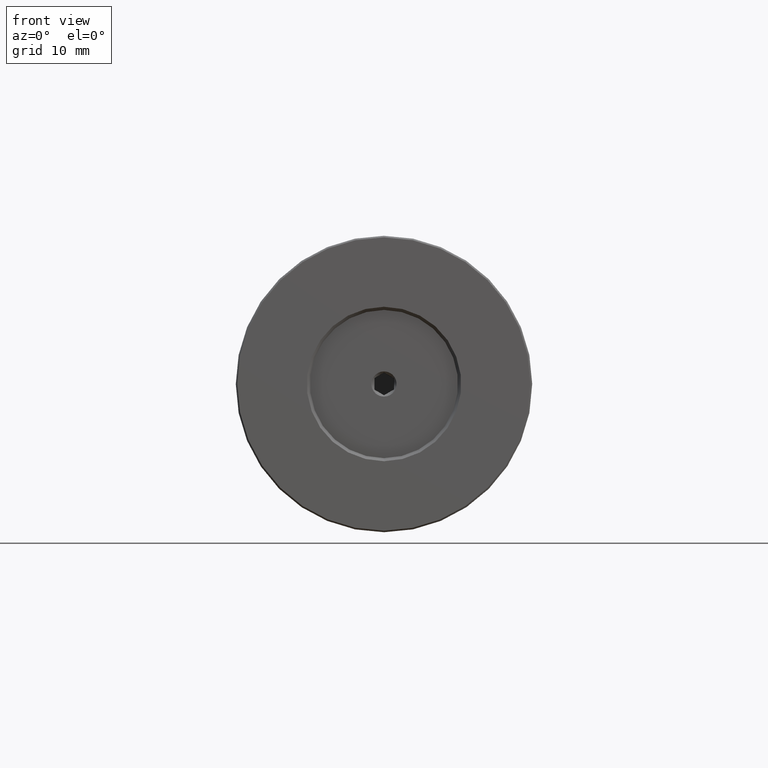
[diagram: clean part render]
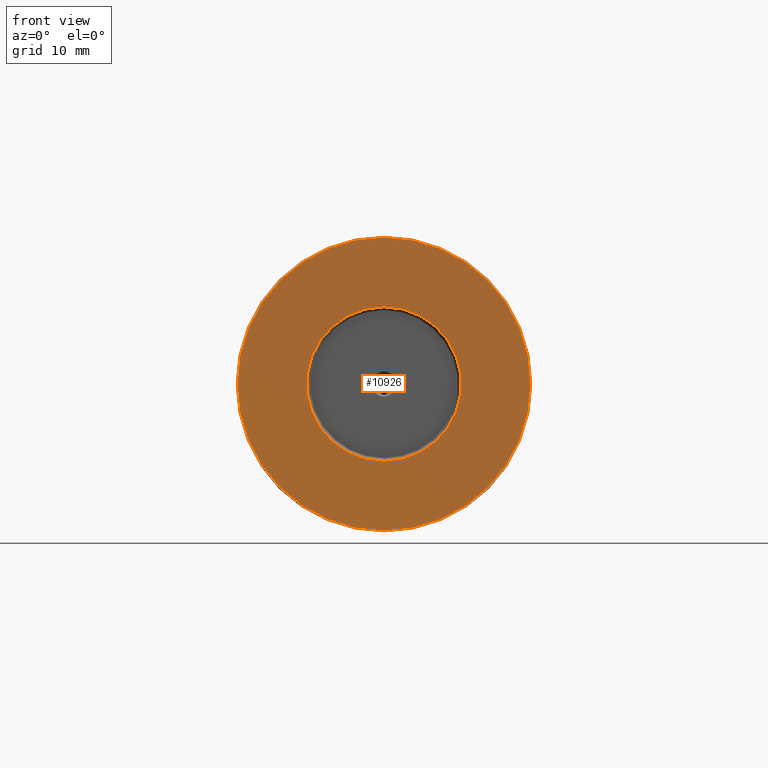
[diagram: same view with one face highlighted and labeled with its STEP entity id]
A machine part, front view. The second image highlights one B-rep face of the part: STEP entity #10926.
In plain terms, the highlighted planar face has unit normal (0, 1, 0).
Its self-contained STEP definition (entity closure, byte-faithful):
#213 = EDGE_LOOP ( 'NONE', ( #2852, #6537 ) ) ;
#326 = DIRECTION ( 'NONE',  ( 0.000000000000000000, 0.000000000000000000, 1.000000000000000000 ) ) ;
#632 = CIRCLE ( 'NONE', #2019, 12.25000000000001066 ) ;
#1293 = FACE_OUTER_BOUND ( 'NONE', #213, .T. ) ;
#2019 = AXIS2_PLACEMENT_3D ( 'NONE', #11609, #7763, #326 ) ;
#2180 = DIRECTION ( 'NONE',  ( 0.000000000000000000, 0.000000000000000000, 1.000000000000000000 ) ) ;
#2290 = AXIS2_PLACEMENT_3D ( 'NONE', #4166, #7876, #6940 ) ;
#2337 = CIRCLE ( 'NONE', #6443, 12.25000000000001066 ) ;
#2517 = EDGE_CURVE ( 'NONE', #6074, #6223, #2337, .T. ) ;
#2608 = CARTESIAN_POINT ( 'NONE',  ( 0.000000000000000000, 0.000000000000000000, 0.000000000000000000 ) ) ;
#2852 = ORIENTED_EDGE ( 'NONE', *, *, #6036, .T. ) ;
#3592 = DIRECTION ( 'NONE',  ( -0.000000000000000000, -1.000000000000000000, -0.000000000000000000 ) ) ;
#3722 = CARTESIAN_POINT ( 'NONE',  ( 0.000000000000000000, 0.000000000000000000, 0.000000000000000000 ) ) ;
#4047 = FACE_BOUND ( 'NONE', #5369, .T. ) ;
#4081 = VERTEX_POINT ( 'NONE', #5089 ) ;
#4166 = CARTESIAN_POINT ( 'NONE',  ( 0.000000000000000000, 0.000000000000000000, 0.000000000000000000 ) ) ;
#4944 = DIRECTION ( 'NONE',  ( 0.000000000000000000, 1.000000000000000000, 0.000000000000000000 ) ) ;
#5089 = CARTESIAN_POINT ( 'NONE',  ( 2.862611893006937638E-15, 0.000000000000000000, -23.24999999999999645 ) ) ;
#5369 = EDGE_LOOP ( 'NONE', ( #5475, #6091 ) ) ;
#5475 = ORIENTED_EDGE ( 'NONE', *, *, #2517, .T. ) ;
#5565 = DIRECTION ( 'NONE',  ( 0.000000000000000000, 0.000000000000000000, 1.000000000000000000 ) ) ;
#5933 = CIRCLE ( 'NONE', #9084, 23.24999999999999645 ) ;
#6036 = EDGE_CURVE ( 'NONE', #10767, #4081, #5933, .T. ) ;
#6074 = VERTEX_POINT ( 'NONE', #6098 ) ;
#6091 = ORIENTED_EDGE ( 'NONE', *, *, #9732, .T. ) ;
#6098 = CARTESIAN_POINT ( 'NONE',  ( 0.000000000000000000, 0.000000000000000000, -12.25000000000001066 ) ) ;
#6223 = VERTEX_POINT ( 'NONE', #8069 ) ;
#6443 = AXIS2_PLACEMENT_3D ( 'NONE', #10595, #4944, #2180 ) ;
#6537 = ORIENTED_EDGE ( 'NONE', *, *, #10322, .T. ) ;
#6940 = DIRECTION ( 'NONE',  ( 0.000000000000000000, -0.000000000000000000, 1.000000000000000000 ) ) ;
#7763 = DIRECTION ( 'NONE',  ( 0.000000000000000000, 1.000000000000000000, 0.000000000000000000 ) ) ;
#7809 = CIRCLE ( 'NONE', #11508, 23.24999999999999645 ) ;
#7816 = CARTESIAN_POINT ( 'NONE',  ( 0.000000000000000000, 0.000000000000000000, 23.24999999999999645 ) ) ;
#7876 = DIRECTION ( 'NONE',  ( 0.000000000000000000, 1.000000000000000000, 0.000000000000000000 ) ) ;
#8069 = CARTESIAN_POINT ( 'NONE',  ( 1.500192328955509115E-15, 0.000000000000000000, 12.25000000000001066 ) ) ;
#8789 = PLANE ( 'NONE',  #2290 ) ;
#9084 = AXIS2_PLACEMENT_3D ( 'NONE', #2608, #10893, #9119 ) ;
#9119 = DIRECTION ( 'NONE',  ( 0.000000000000000000, 0.000000000000000000, 1.000000000000000000 ) ) ;
#9732 = EDGE_CURVE ( 'NONE', #6223, #6074, #632, .T. ) ;
#10322 = EDGE_CURVE ( 'NONE', #4081, #10767, #7809, .T. ) ;
#10595 = CARTESIAN_POINT ( 'NONE',  ( 0.000000000000000000, 0.000000000000000000, 0.000000000000000000 ) ) ;
#10767 = VERTEX_POINT ( 'NONE', #7816 ) ;
#10893 = DIRECTION ( 'NONE',  ( -0.000000000000000000, -1.000000000000000000, -0.000000000000000000 ) ) ;
#10926 = ADVANCED_FACE ( 'NONE', ( #4047, #1293 ), #8789, .F. ) ;
#11508 = AXIS2_PLACEMENT_3D ( 'NONE', #3722, #3592, #5565 ) ;
#11609 = CARTESIAN_POINT ( 'NONE',  ( 0.000000000000000000, 0.000000000000000000, 0.000000000000000000 ) ) ;